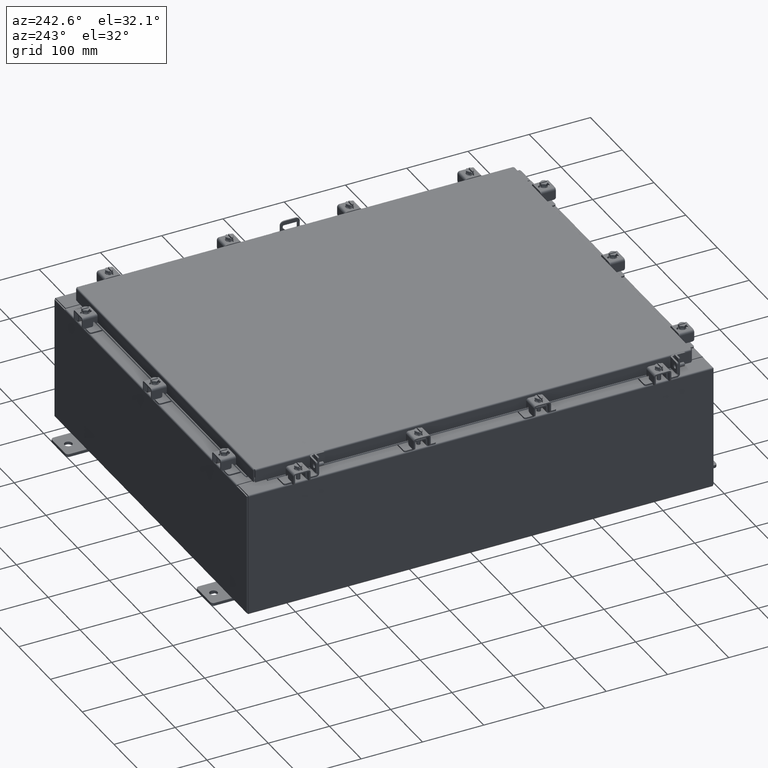
[diagram: clean part render]
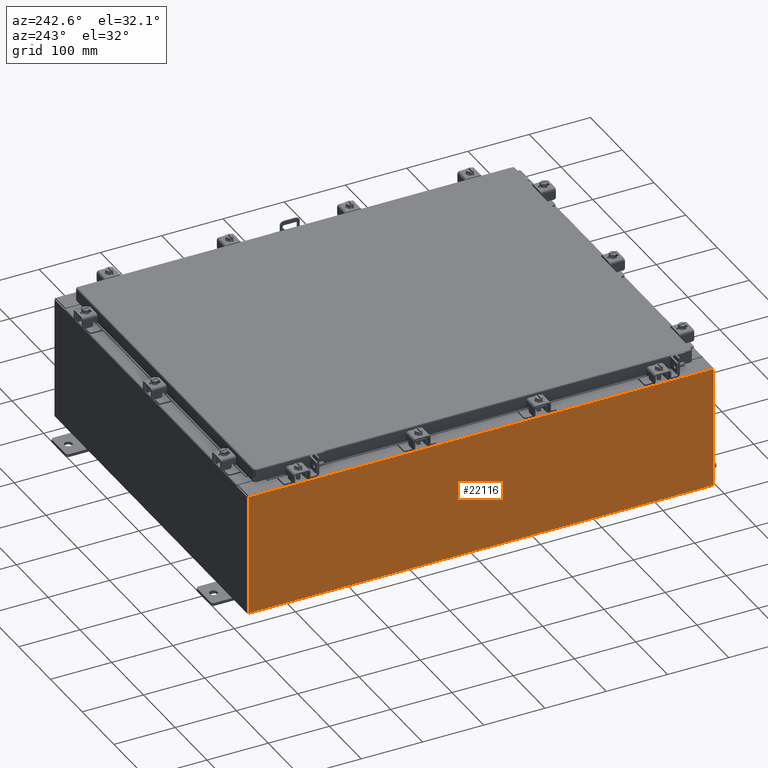
[diagram: same view with one face highlighted and labeled with its STEP entity id]
A machine part, auxiliary view. The second image highlights one B-rep face of the part: STEP entity #22116.
In plain terms, the highlighted planar face has unit normal (1, 0, 0).
Its self-contained STEP definition (entity closure, byte-faithful):
#72 = FACE_OUTER_BOUND ( 'NONE', #2148, .T. ) ;
#880 = VERTEX_POINT ( 'NONE', #11925 ) ;
#2148 = EDGE_LOOP ( 'NONE', ( #15828, #12168, #3560, #6623 ) ) ;
#2747 = CARTESIAN_POINT ( 'NONE',  ( -12.00000000000000500, -14.92530000000000000, -4.327932773236203200E-014 ) ) ;
#3019 = DIRECTION ( 'NONE',  ( 1.000000000000000000, 0.0000000000000000000, 3.584876173029202900E-015 ) ) ;
#3083 = CARTESIAN_POINT ( 'NONE',  ( -12.00000000000003400, 14.92530000000000000, 7.837599999999999200 ) ) ;
#3111 = AXIS2_PLACEMENT_3D ( 'NONE', #19068, #3019, #15546 ) ;
#3560 = ORIENTED_EDGE ( 'NONE', *, *, #22735, .F. ) ;
#4135 = VECTOR ( 'NONE', #16991, 39.37007874015748100 ) ;
#4397 = EDGE_CURVE ( 'NONE', #880, #8329, #9481, .T. ) ;
#4405 = LINE ( 'NONE', #12232, #18671 ) ;
#4654 = EDGE_CURVE ( 'NONE', #8329, #11619, #4405, .T. ) ;
#5267 = CARTESIAN_POINT ( 'NONE',  ( -12.00000000000000500, 14.92530000000000000, 0.01299999999999983600 ) ) ;
#6623 = ORIENTED_EDGE ( 'NONE', *, *, #4397, .T. ) ;
#7816 = CARTESIAN_POINT ( 'NONE',  ( -12.00000000000000500, 14.92530000000000000, -4.327932773236203200E-014 ) ) ;
#8132 = VECTOR ( 'NONE', #13977, 39.37007874015748100 ) ;
#8329 = VERTEX_POINT ( 'NONE', #14578 ) ;
#9481 = LINE ( 'NONE', #2747, #4135 ) ;
#10092 = LINE ( 'NONE', #17561, #8132 ) ;
#11619 = VERTEX_POINT ( 'NONE', #3083 ) ;
#11925 = CARTESIAN_POINT ( 'NONE',  ( -12.00000000000000500, -14.92530000000000000, 0.01299999999999984700 ) ) ;
#12168 = ORIENTED_EDGE ( 'NONE', *, *, #16127, .T. ) ;
#12232 = CARTESIAN_POINT ( 'NONE',  ( -12.00000000000003400, -14.92530000000000000, 7.837599999999999200 ) ) ;
#13768 = PLANE ( 'NONE',  #3111 ) ;
#13977 = DIRECTION ( 'NONE',  ( -0.0000000000000000000, 1.000000000000000000, -0.0000000000000000000 ) ) ;
#14578 = CARTESIAN_POINT ( 'NONE',  ( -12.00000000000003400, -14.92530000000000000, 7.837599999999999200 ) ) ;
#14586 = VECTOR ( 'NONE', #22106, 39.37007874015748100 ) ;
#15144 = LINE ( 'NONE', #7816, #14586 ) ;
#15546 = DIRECTION ( 'NONE',  ( 3.584876173029202900E-015, 0.0000000000000000000, -1.000000000000000000 ) ) ;
#15828 = ORIENTED_EDGE ( 'NONE', *, *, #4654, .T. ) ;
#16127 = EDGE_CURVE ( 'NONE', #11619, #19418, #15144, .T. ) ;
#16991 = DIRECTION ( 'NONE',  ( -3.584876173029202900E-015, 0.0000000000000000000, 1.000000000000000000 ) ) ;
#17561 = CARTESIAN_POINT ( 'NONE',  ( -12.00000000000000500, 14.92530000000000000, 0.01299999999999984700 ) ) ;
#18671 = VECTOR ( 'NONE', #19401, 39.37007874015748100 ) ;
#19068 = CARTESIAN_POINT ( 'NONE',  ( -12.00000000000000500, 0.0000000000000000000, -4.327932773236203200E-014 ) ) ;
#19401 = DIRECTION ( 'NONE',  ( 0.0000000000000000000, 1.000000000000000000, 0.0000000000000000000 ) ) ;
#19418 = VERTEX_POINT ( 'NONE', #5267 ) ;
#22106 = DIRECTION ( 'NONE',  ( 3.584876173029202900E-015, 0.0000000000000000000, -1.000000000000000000 ) ) ;
#22116 = ADVANCED_FACE ( 'NONE', ( #72 ), #13768, .F. ) ;
#22735 = EDGE_CURVE ( 'NONE', #880, #19418, #10092, .T. ) ;